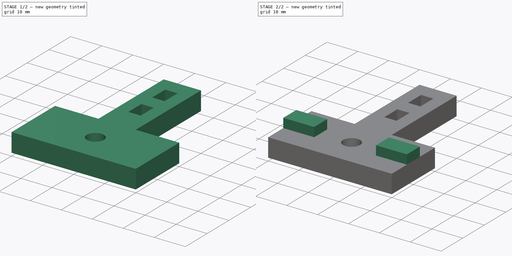
[diagram: build sequence overview — one tinted view per stage of 2, left to right]
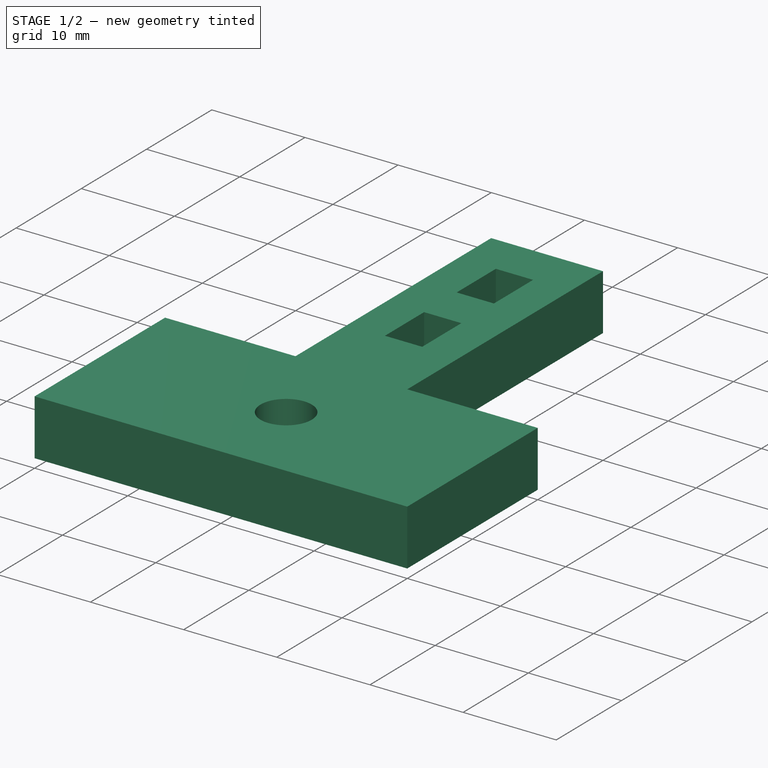
[diagram: stage 1 of 2 — iso view after this stage's code; geometry added in this stage tinted green]
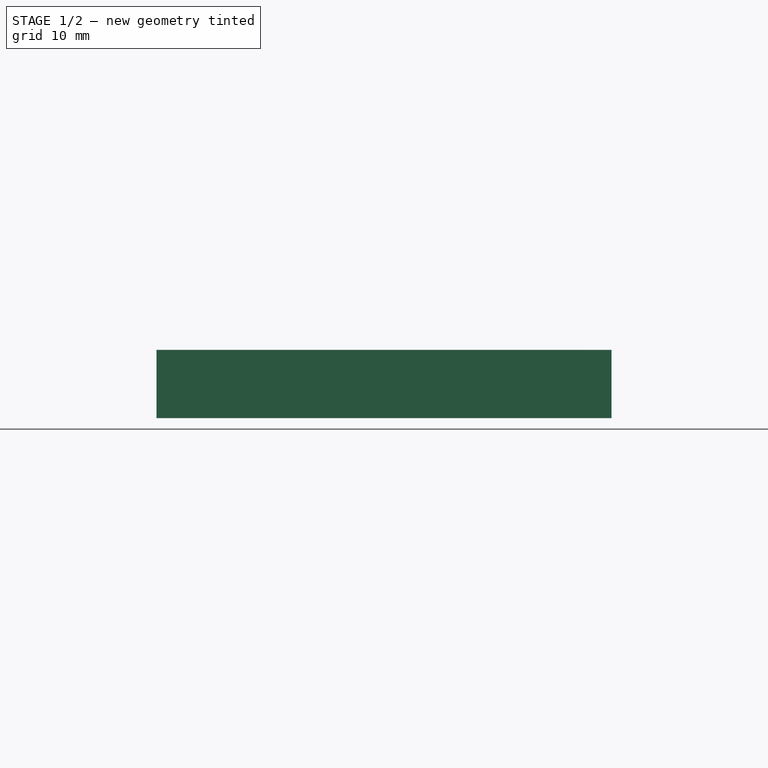
[diagram: stage 1 of 2 — front view after this stage's code; geometry added in this stage tinted green]
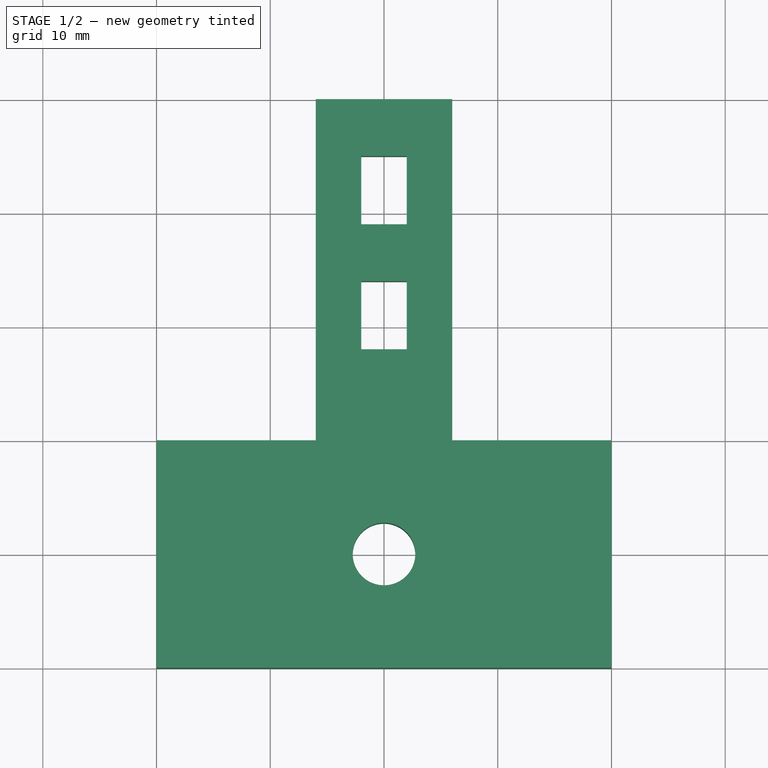
[diagram: stage 1 of 2 — top view after this stage's code; geometry added in this stage tinted green]
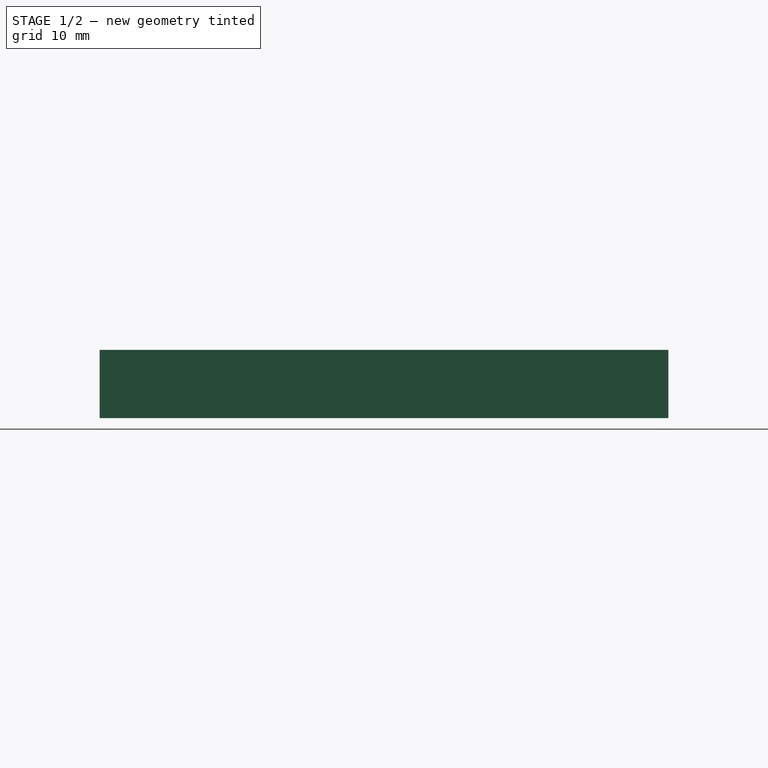
[diagram: stage 1 of 2 — right view after this stage's code; geometry added in this stage tinted green]
FCSTD DOCUMENT  (FreeCAD 0.20R27518 (Git))
Label: wire mount point
License: All rights reserved
LicenseURL: http://en.wikipedia.org/wiki/All_rights_reserved
objects: Sketcher::SketchObject×2, PartDesign::Pad×2, PartDesign::Body×1
note: 7 computed .brp shape members not serialized (recipe doc carries the construction recipe); baked Part::Feature solids carry a one-line shape summary decoded from their .brp

FEATURE [Sketcher::SketchObject] Sketch
  FullyConstrained = true
  MapMode = 5
  Support = -> [XY_Plane]
  sketch-geometry (23):
    g0: LineSegment StartX=-6 StartY=50 StartZ=0 EndX=-6 EndY=20 EndZ=0
    g1: LineSegment StartX=-6 StartY=50 StartZ=0 EndX=6 EndY=50 EndZ=0
    g2: LineSegment StartX=6 StartY=50 StartZ=0 EndX=6 EndY=20 EndZ=0
    g3: LineSegment StartX=-2 StartY=45 StartZ=0 EndX=2 EndY=45 EndZ=0
    g4: LineSegment StartX=2 StartY=45 StartZ=0 EndX=2 EndY=39 EndZ=0
    g5: LineSegment StartX=2 StartY=39 StartZ=0 EndX=-2 EndY=39 EndZ=0
    g6: LineSegment StartX=-2 StartY=39 StartZ=0 EndX=-2 EndY=45 EndZ=0
    g7: LineSegment StartX=-2 StartY=34 StartZ=0 EndX=2 EndY=34 EndZ=0
    g8: LineSegment StartX=2 StartY=34 StartZ=0 EndX=2 EndY=28 EndZ=0
    g9: LineSegment StartX=2 StartY=28 StartZ=0 EndX=-2 EndY=28 EndZ=0
    g10: LineSegment StartX=-2 StartY=28 StartZ=0 EndX=-2 EndY=34 EndZ=0
    g11: LineSegment StartX=-2 StartY=45 StartZ=0 EndX=-2 EndY=50 EndZ=0
    g12: LineSegment StartX=-2 StartY=39 StartZ=0 EndX=-2 EndY=34 EndZ=0
    g13: LineSegment StartX=-2 StartY=45 StartZ=0 EndX=-6 EndY=45 EndZ=0
    g14: LineSegment StartX=2 StartY=45 StartZ=0 EndX=6 EndY=45 EndZ=0
    g15: LineSegment StartX=-20 StartY=0 StartZ=0 EndX=20 EndY=0 EndZ=0
    g16: LineSegment StartX=20 StartY=0 StartZ=0 EndX=20 EndY=20 EndZ=0
    g17: LineSegment StartX=-20 StartY=0 StartZ=0 EndX=-20 EndY=20 EndZ=0
    g18: LineSegment StartX=-20 StartY=20 StartZ=0 EndX=-6 EndY=20 EndZ=0
    g19: LineSegment StartX=6 StartY=20 StartZ=0 EndX=20 EndY=20 EndZ=0
    g20: Circle CenterX=0 CenterY=10 CenterZ=0 NormalX=0 NormalY=0 NormalZ=1 AngleXU=0 Radius=2.75
    g21: LineSegment StartX=-20 StartY=20 StartZ=0 EndX=0 EndY=10 EndZ=0
    g22: LineSegment StartX=0 StartY=10 StartZ=0 EndX=-20 EndY=0 EndZ=0
  constraints (64):
    c: Vertical(g0)
    c: Horizontal(g1)
    c: Coincident(g1,g0)
    c: DistanceX(g1,g1) = 12
    c: Coincident(g2,g1)
    c: Vertical(g2)
    c: Coincident(g3,g4)
    c: Coincident(g4,g5)
    c: Coincident(g5,g6)
    c: Coincident(g6,g3)
    c: Horizontal(g3)
    c: Horizontal(g5)
    c: Vertical(g4)
    c: Vertical(g6)
    c: Coincident(g7,g8)
    c: Coincident(g8,g9)
    c: Coincident(g9,g10)
    c: Coincident(g10,g7)
    c: Horizontal(g7)
    c: Horizontal(g9)
    c: Vertical(g8)
    c: Vertical(g10)
    c: DistanceX(g3,g3) = 4
    c: DistanceY(g4,g4) = 6
    c: Coincident(g11,g3)
    c: PointOnObject(g11,g1)
    c: Vertical(g11)
    c: Equal(g6,g10)
    c: Equal(g7,g5)
    c: Vertical(g5,g7)
    c: Coincident(g12,g5)
    c: Coincident(g12,g7)
    c: Equal(g12,g11)
    c: DistanceY(g12,g12) = 5
    c: Coincident(g13,g3)
    c: Horizontal(g13)
    c: Coincident(g14,g3)
    c: PointOnObject(g14,g2)
    c: Horizontal(g14)
    c: Equal(g13,g14)
    c: PointOnObject(g13,g0)
    c: PointOnObject(g15,g-1)
    c: Coincident(g16,g15)
    c: Vertical(g16)
    c: DistanceY(g16,g16) = 20
    c: Coincident(g17,g15)
    c: Vertical(g17)
    c: DistanceX(g15,g15) = 40
    c: Symmetric(g15,g15,g-1)
    c: Coincident(g18,g17)
    c: Coincident(g18,g0)
    c: Coincident(g19,g2)
    c: Coincident(g19,g16)
    c: Horizontal(g18)
    c: Horizontal(g19)
    c: Symmetric(g0,g2,g-2)
    c: DistanceY(g0,g0) = 30
    c: PointOnObject(g20,g-2)
    c: Diameter(g20) = 5.5
    c: Coincident(g21,g17)
    c: Coincident(g21,g20)
    c: Coincident(g22,g20)
    c: Coincident(g22,g15)
    c: Equal(g22,g21)
FEATURE [PartDesign::Pad] Pad
  Direction = (0,0,1)
  Length = 6
  Length2 = 10
  Profile = -> Sketch
  ReferenceAxis = -> Sketch [N_Axis]
  Refine = true
  Type = 0
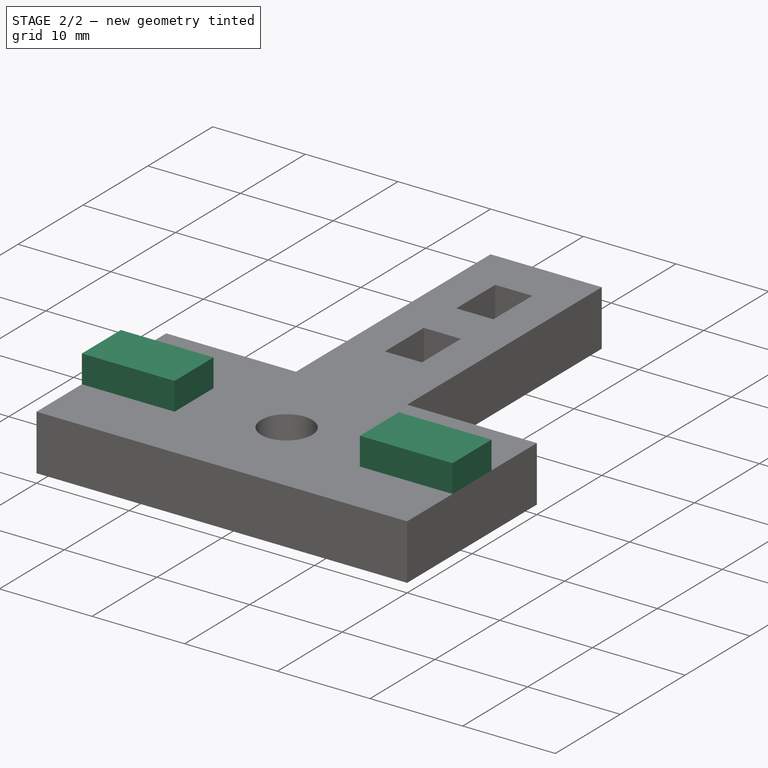
[diagram: stage 2 of 2 — iso view after this stage's code; geometry added in this stage tinted green]
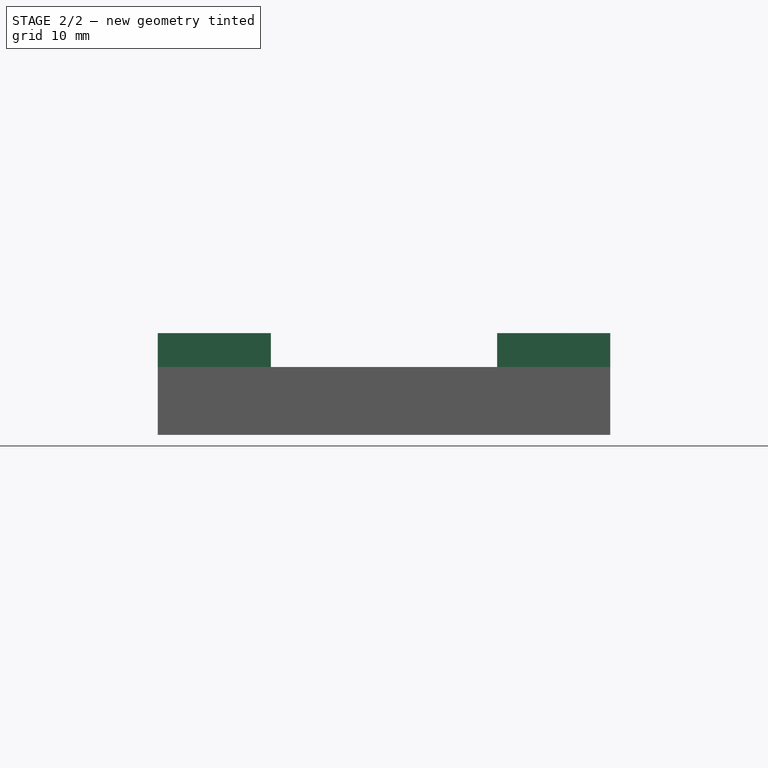
[diagram: stage 2 of 2 — front view after this stage's code; geometry added in this stage tinted green]
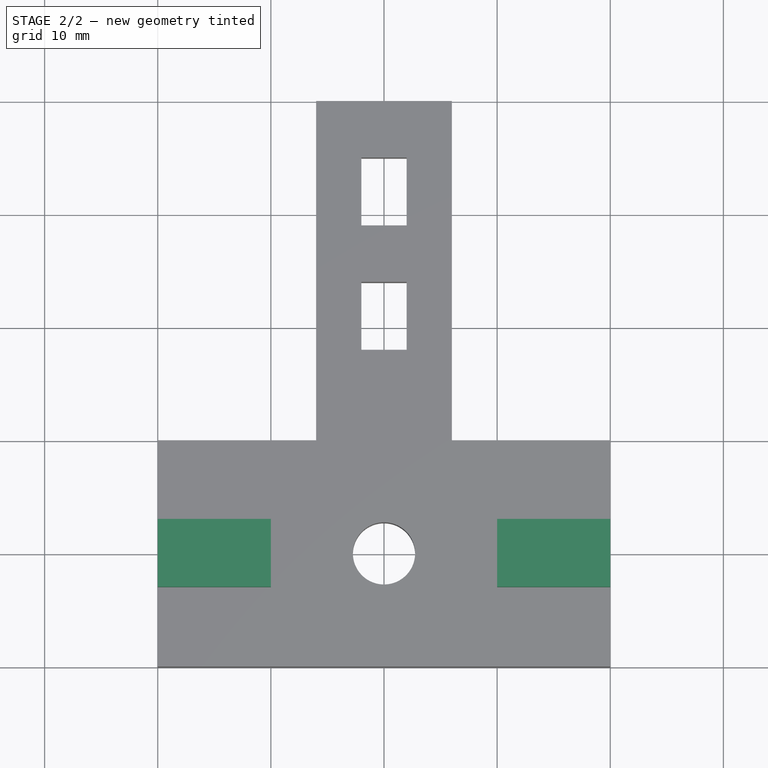
[diagram: stage 2 of 2 — top view after this stage's code; geometry added in this stage tinted green]
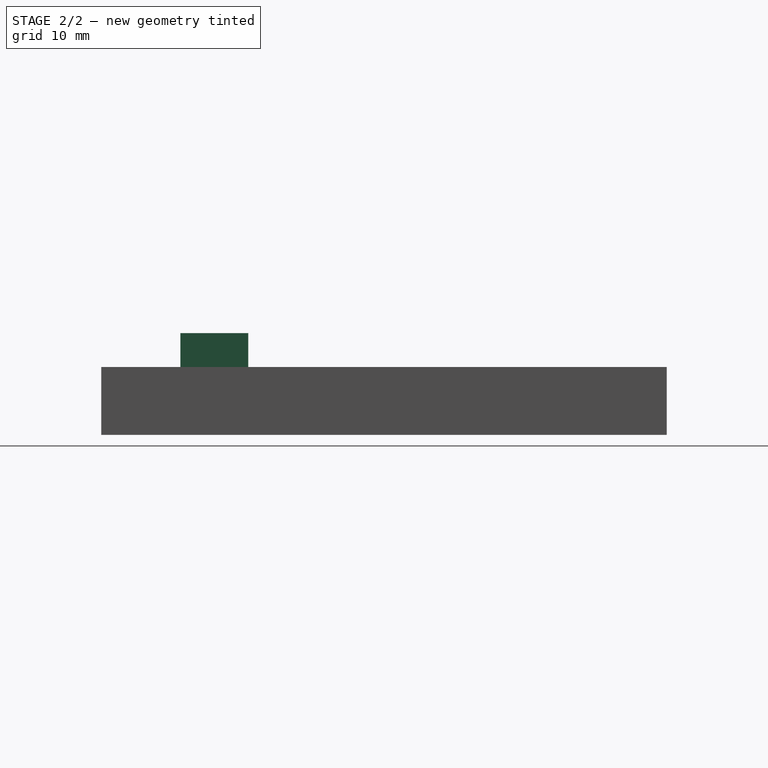
[diagram: stage 2 of 2 — right view after this stage's code; geometry added in this stage tinted green]
FEATURE [Sketcher::SketchObject] Sketch001
  ExternalGeometry = -> [Pad]
  FullyConstrained = true
  MapMode = 5
  Placement = pos=(0,0,6) rot=(0,0,1;0rad)
  Support = -> [Pad]
  sketch-geometry (10):
    g0: LineSegment StartX=-20 StartY=13 StartZ=0 EndX=-10 EndY=13 EndZ=0
    g1: LineSegment StartX=-10 StartY=13 StartZ=0 EndX=-10 EndY=7 EndZ=0
    g2: LineSegment StartX=-10 StartY=7 StartZ=0 EndX=-20 EndY=7 EndZ=0
    g3: LineSegment StartX=-20 StartY=7 StartZ=0 EndX=-20 EndY=13 EndZ=0
    g4: LineSegment StartX=10 StartY=13 StartZ=0 EndX=20 EndY=13 EndZ=0
    g5: LineSegment StartX=20 StartY=13 StartZ=0 EndX=20 EndY=7 EndZ=0
    g6: LineSegment StartX=20 StartY=7 StartZ=0 EndX=10 EndY=7 EndZ=0
    g7: LineSegment StartX=10 StartY=7 StartZ=0 EndX=10 EndY=13 EndZ=0
    g8: LineSegment StartX=-20 StartY=13 StartZ=0 EndX=-20 EndY=20 EndZ=0
    g9: LineSegment StartX=-20 StartY=7 StartZ=0 EndX=-20 EndY=0 EndZ=0
  constraints (28):
    c: Coincident(g0,g1)
    c: Coincident(g1,g2)
    c: Coincident(g2,g3)
    c: Coincident(g3,g0)
    c: Horizontal(g0)
    c: Horizontal(g2)
    c: Vertical(g1)
    c: Vertical(g3)
    c: Coincident(g4,g5)
    c: Coincident(g5,g6)
    c: Coincident(g6,g7)
    c: Coincident(g7,g4)
    c: Horizontal(g4)
    c: Horizontal(g6)
    c: Vertical(g5)
    c: Vertical(g7)
    c: PointOnObject(g0,g-3)
    c: PointOnObject(g4,g-4)
    c: Equal(g0,g4)
    c: Equal(g1,g7)
    c: DistanceY(g5,g5) = 6
    c: DistanceX(g0,g4) = 20
    c: Horizontal(g0,g4)
    c: Coincident(g8,g0)
    c: Coincident(g8,g-3)
    c: Coincident(g9,g2)
    c: Coincident(g9,g-3)
    c: Equal(g9,g8)
FEATURE [PartDesign::Pad] Pad001
  BaseFeature = -> Pad
  Direction = (0,0,1)
  Length = 3
  Length2 = 10
  Profile = -> Sketch001
  ReferenceAxis = -> Sketch001 [N_Axis]
  Refine = true
  Type = 0
FEATURE [PartDesign::Body] Body
  Group = -> [Sketch,Pad,Sketch001,Pad001]
  Origin = -> Origin
  Tip = -> Pad001
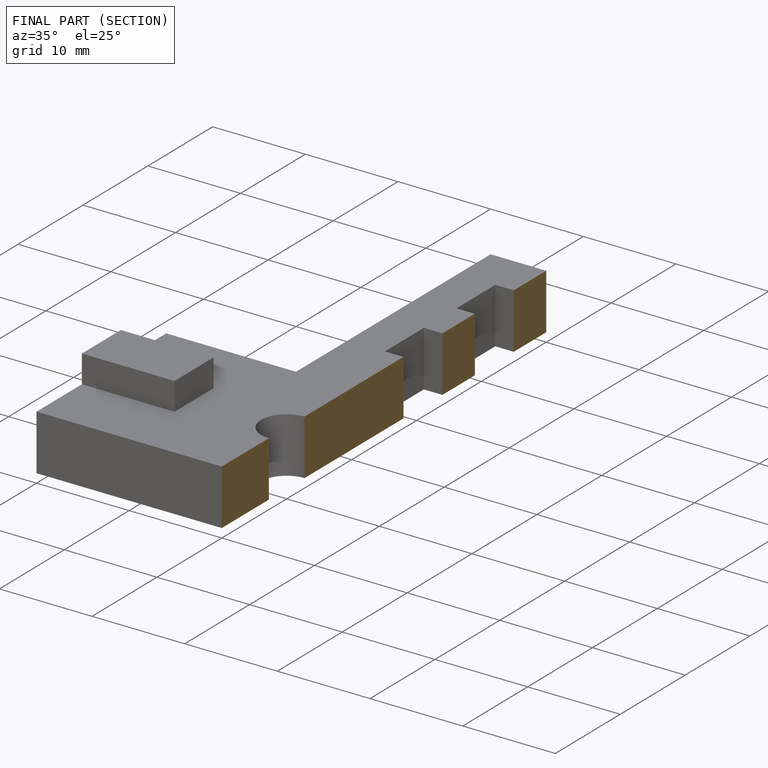
[diagram: finished part — half-section view (interior)]
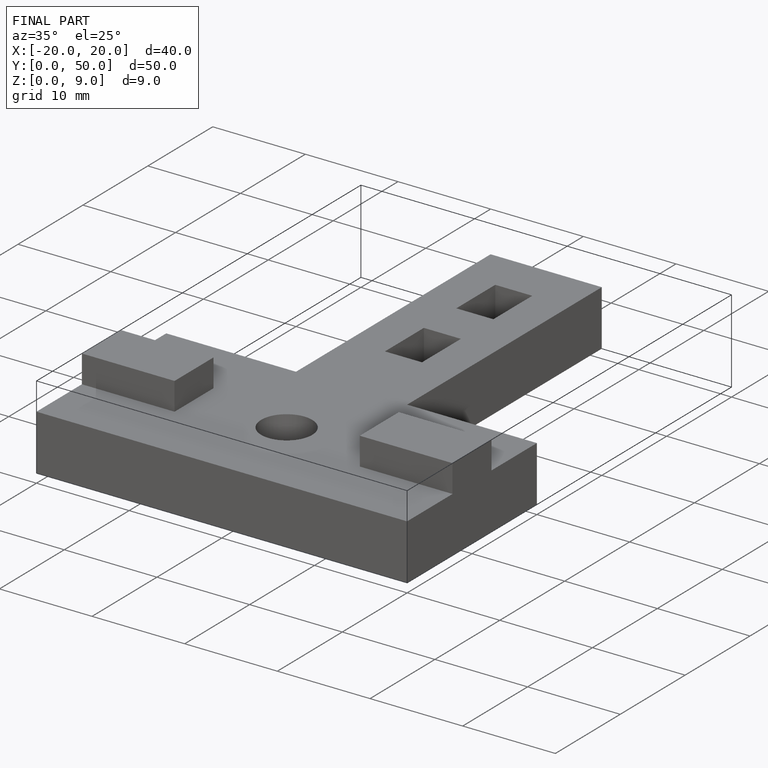
[diagram: finished part — iso view with bounding-box wireframe]
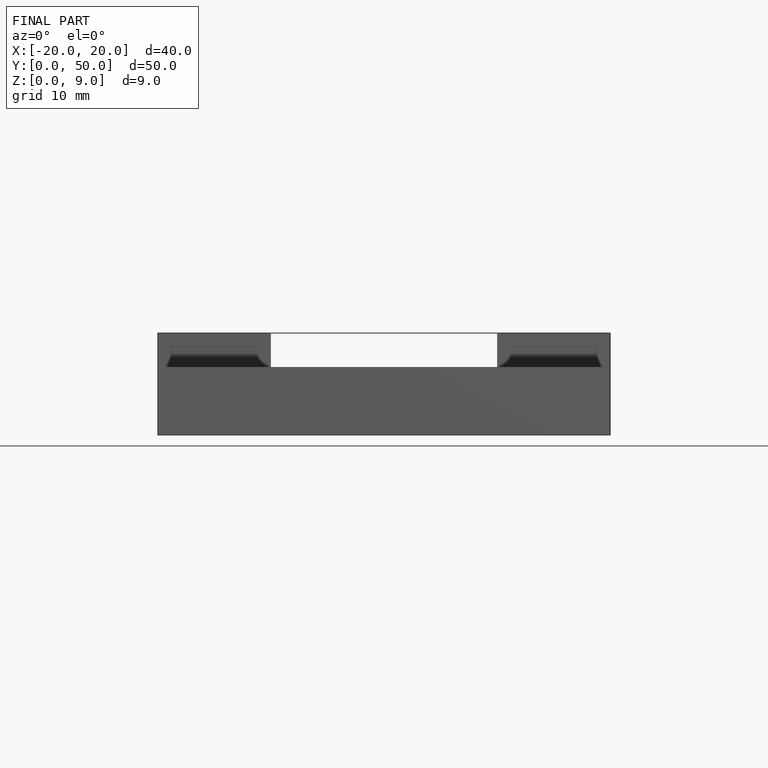
[diagram: finished part — front view with bounding-box wireframe]
